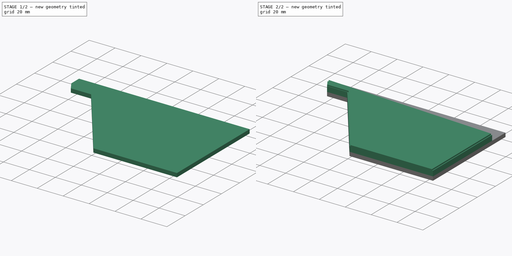
[diagram: build sequence overview — one tinted view per stage of 2, left to right]
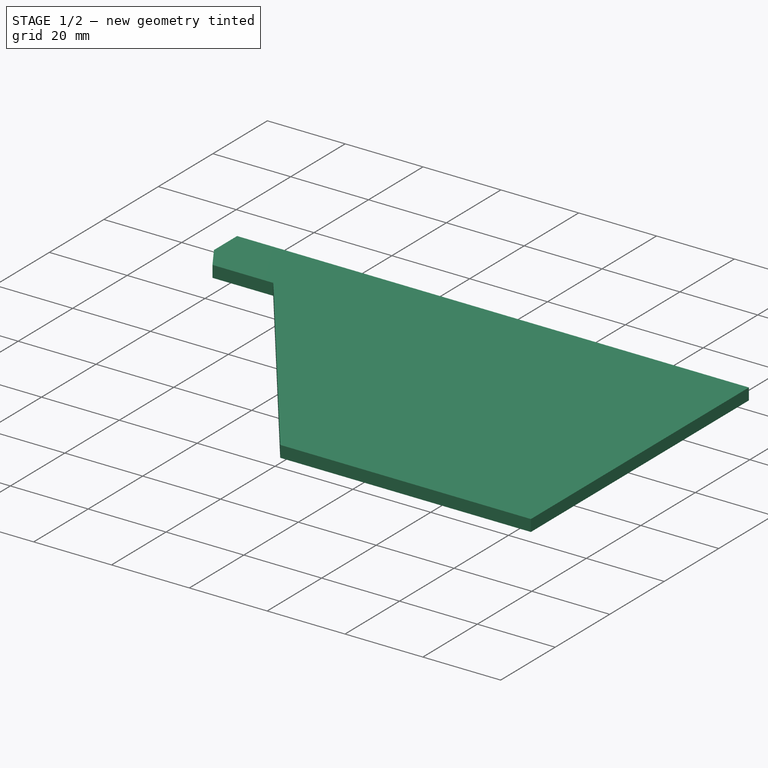
[diagram: stage 1 of 2 — iso view after this stage's code; geometry added in this stage tinted green]
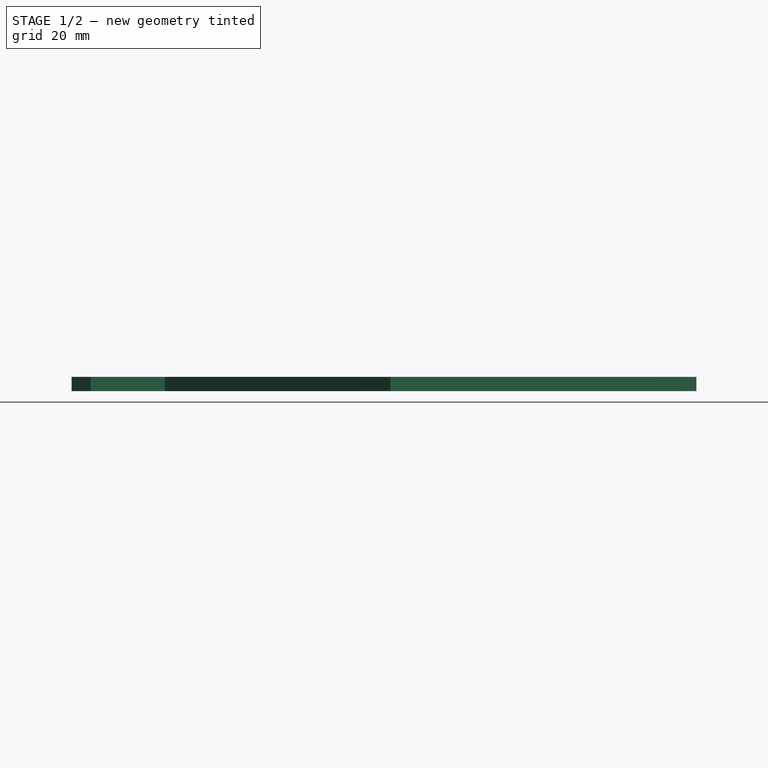
[diagram: stage 1 of 2 — front view after this stage's code; geometry added in this stage tinted green]
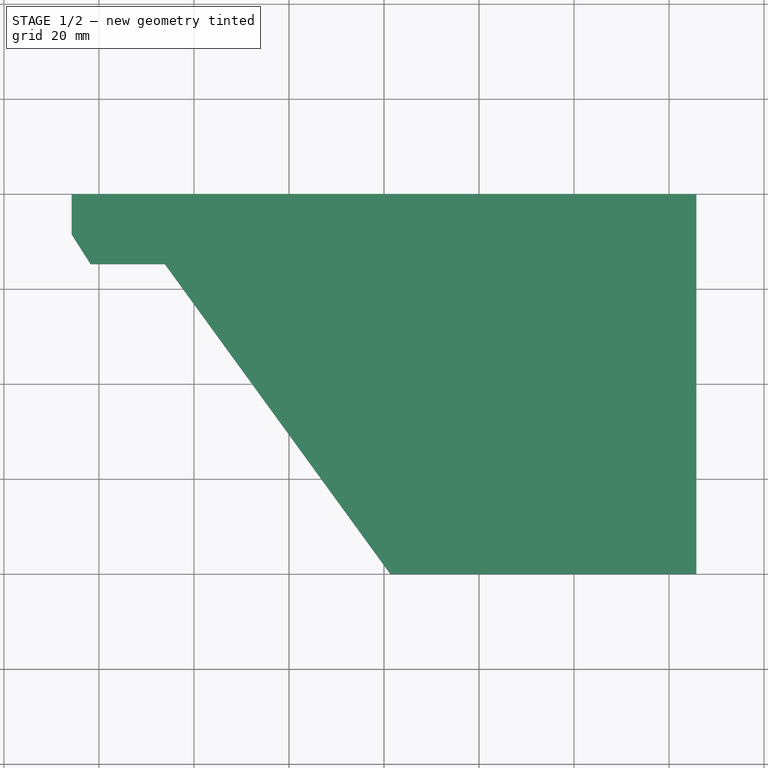
[diagram: stage 1 of 2 — top view after this stage's code; geometry added in this stage tinted green]
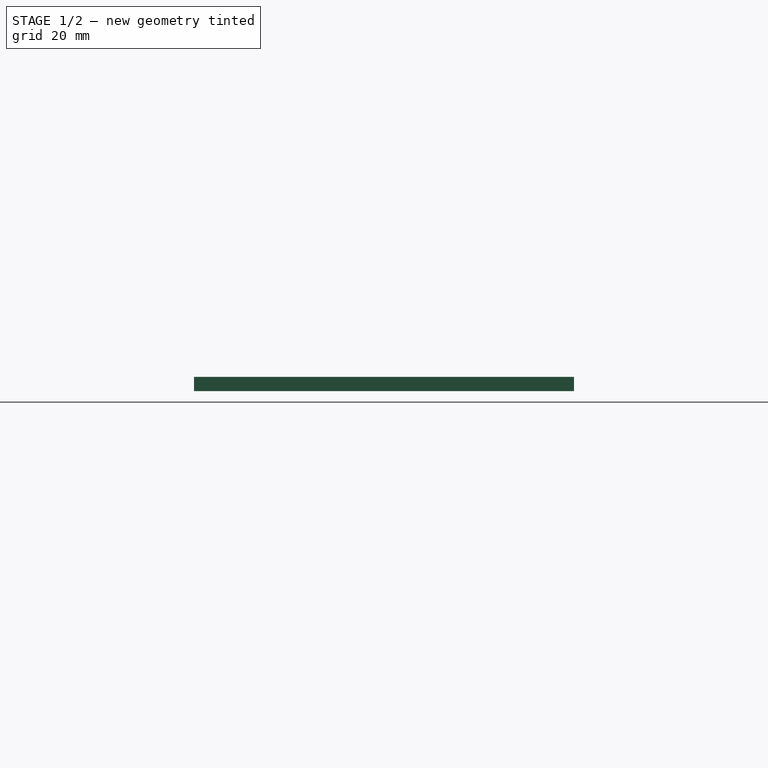
[diagram: stage 1 of 2 — right view after this stage's code; geometry added in this stage tinted green]
FCSTD DOCUMENT  (FreeCAD 0.20R29410 (Git))
Label: cover
License: All rights reserved
LicenseURL: http://en.wikipedia.org/wiki/All_rights_reserved
objects: Sketcher::SketchObject×4, PartDesign::Pad×3, PartDesign::Pocket×1, PartDesign::Body×1
note: 13 computed .brp shape members not serialized (recipe doc carries the construction recipe); baked Part::Feature solids carry a one-line shape summary decoded from their .brp

FEATURE [Sketcher::SketchObject] Sketch010
  FullyConstrained = false
  MapMode = 5
  Support = -> [XY_Plane]
  sketch-geometry (7):
    g0: LineSegment StartX=-46.1285 StartY=25.245 StartZ=0 EndX=1.34 EndY=-40 EndZ=0
    g1: LineSegment StartX=1.34 StartY=-40 StartZ=0 EndX=65.75 EndY=-40 EndZ=0
    g2: LineSegment StartX=65.75 StartY=-40 StartZ=0 EndX=65.75 EndY=40 EndZ=0
    g3: LineSegment StartX=65.75 StartY=40 StartZ=0 EndX=-65.75 EndY=40 EndZ=0
    g4: LineSegment StartX=-65.75 StartY=40 StartZ=0 EndX=-65.75 EndY=31.5023 EndZ=0
    g5: LineSegment StartX=-65.75 StartY=31.5023 StartZ=0 EndX=-61.7546 EndY=25.245 EndZ=0
    g6: LineSegment StartX=-61.7546 StartY=25.245 StartZ=0 EndX=-46.1285 EndY=25.245 EndZ=0
  constraints (15):
    c: Coincident(g0,g1)
    c: Horizontal(g1)
    c: Coincident(g1,g2)
    c: Coincident(g2,g3)
    c: Coincident(g3,g4)
    c: Vertical(g4)
    c: Coincident(g4,g5)
    c: Coincident(g5,g6)
    c: Horizontal(g6)
    c: Coincident(g6,g0)
    c: DistanceY(g2,g2) = 80
    c: DistanceX(g1,g1) = 64.41
    c: Symmetric(g3,g2,g-2)
    c: Symmetric(g2,g1,g-1)
    c: DistanceX(g3,g3) = 131.5
FEATURE [PartDesign::Pad] Pad
  Direction = (0,0,1)
  Length = 3
  Length2 = 10
  Profile = -> Sketch010
  ReferenceAxis = -> Sketch010 [N_Axis]
  Type = 0
FEATURE [Sketcher::SketchObject] Sketch
  FullyConstrained = false
  MapMode = 5
  Support = -> [XY_Plane]
  sketch-geometry (2):
    g0: Circle CenterX=-45 CenterY=36.3012 CenterZ=0 NormalX=0 NormalY=0 NormalZ=1 AngleXU=0 Radius=1.75
    g1: Circle CenterX=45 CenterY=36.3012 CenterZ=0 NormalX=0 NormalY=0 NormalZ=1 AngleXU=0 Radius=1.75
  constraints (4):
    c: Symmetric(g0,g1,g-2)
    c: Equal(g0,g1)
    c: DistanceX(g0) = -45
    c: Diameter(g0) = 3.5
FEATURE [PartDesign::Pocket] Pocket
  BaseFeature = -> Pad
  Direction = (0,0,-1)
  Length = 2
  Length2 = 5
  Profile = -> Sketch
  ReferenceAxis = -> Sketch [N_Axis]
  Reversed = true
  Type = 0
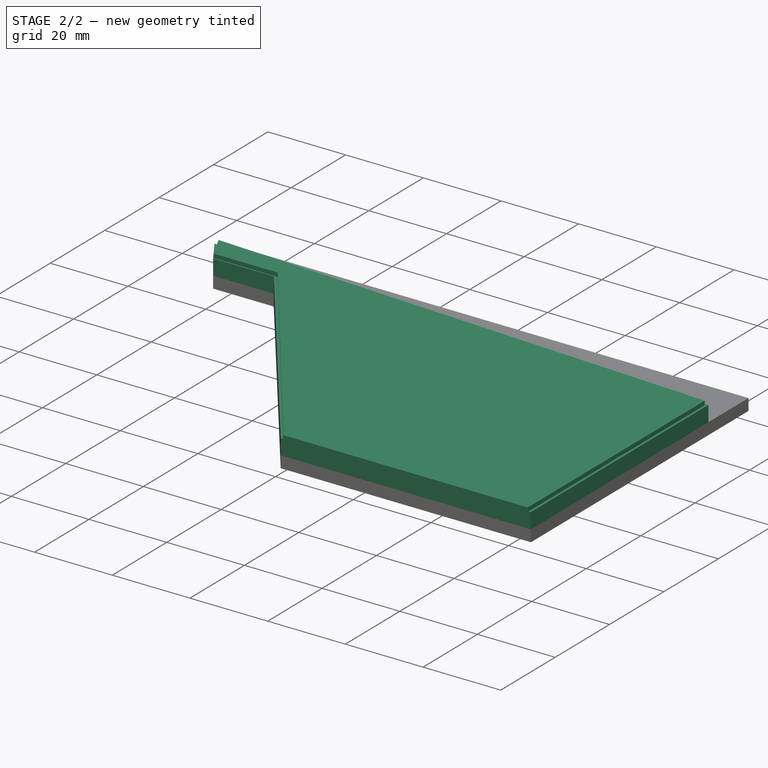
[diagram: stage 2 of 2 — iso view after this stage's code; geometry added in this stage tinted green]
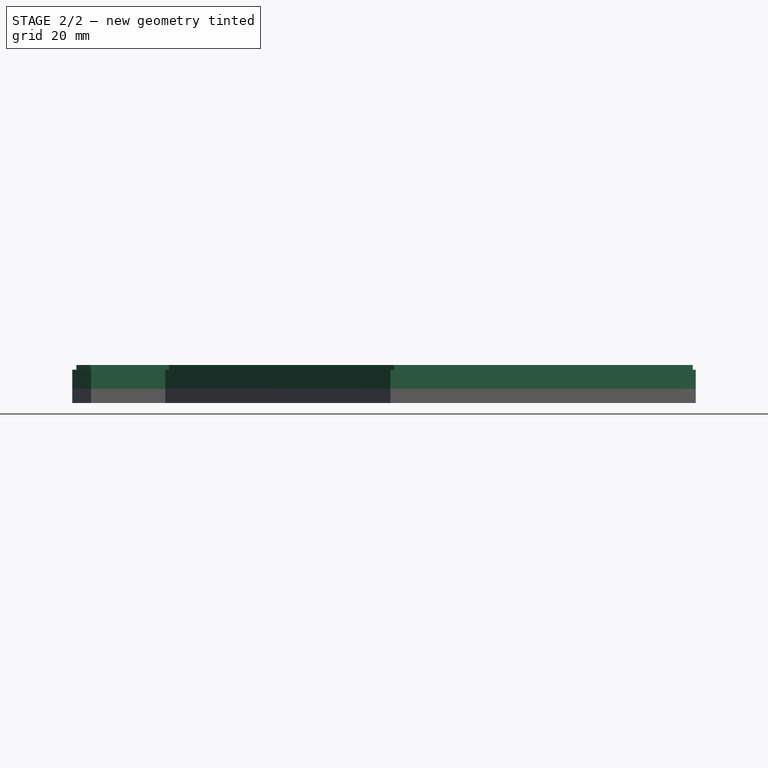
[diagram: stage 2 of 2 — front view after this stage's code; geometry added in this stage tinted green]
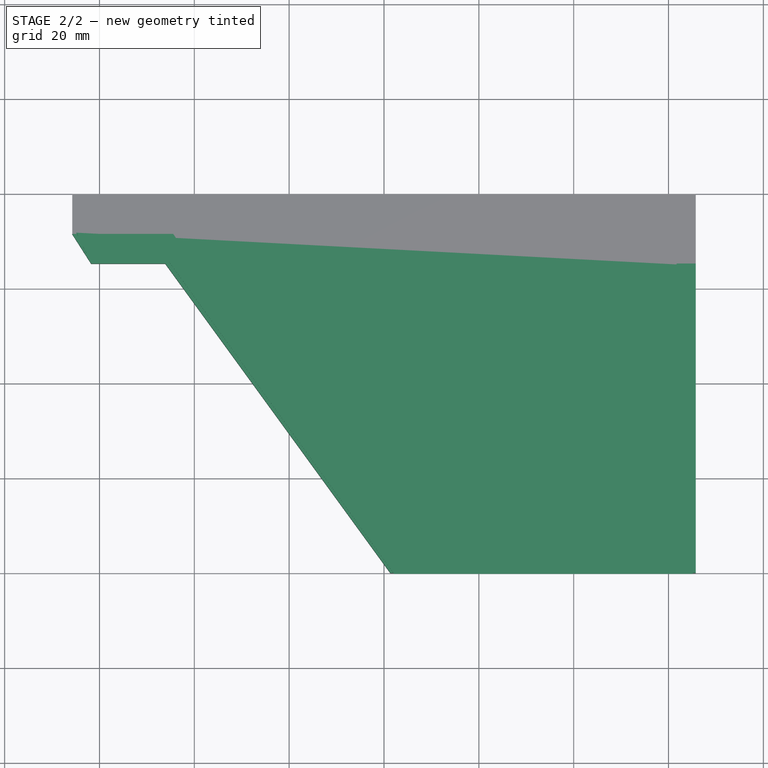
[diagram: stage 2 of 2 — top view after this stage's code; geometry added in this stage tinted green]
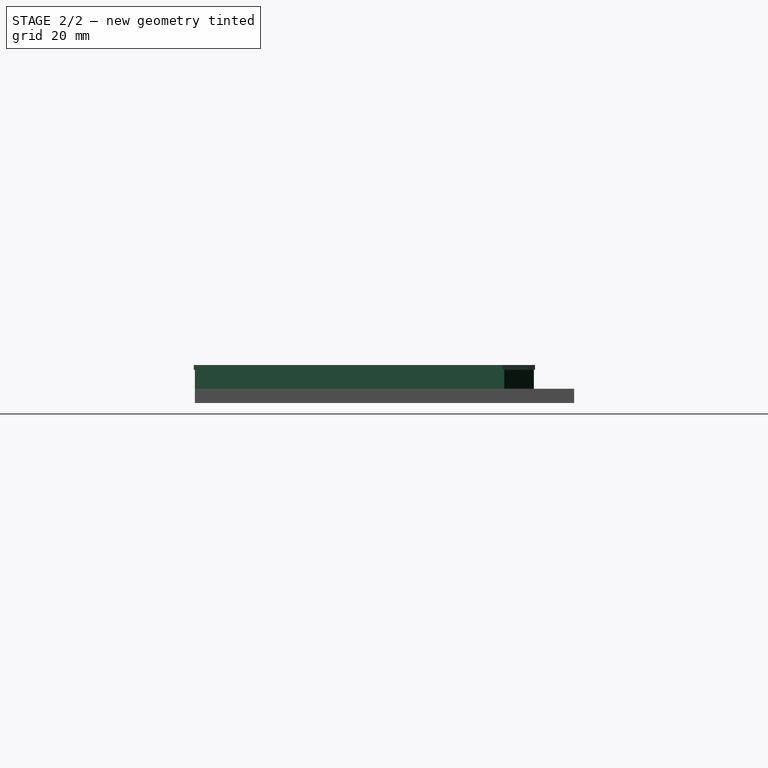
[diagram: stage 2 of 2 — right view after this stage's code; geometry added in this stage tinted green]
FEATURE [Sketcher::SketchObject] Sketch011
  ExternalGeometry = -> [Pocket]
  FullyConstrained = false
  MapMode = 5
  Placement = pos=(0,0,3) rot=(0,0,1;0rad)
  Support = -> [Pocket]
  sketch-geometry (10):
    g0: LineSegment StartX=65.75 StartY=25.245 StartZ=0 EndX=65.75 EndY=-40 EndZ=0
    g1: LineSegment StartX=1.34 StartY=-40 StartZ=0 EndX=-46.1285 EndY=25.245 EndZ=0
    g2: LineSegment StartX=-61.7546 StartY=25.245 StartZ=0 EndX=-65.75 EndY=31.5023 EndZ=0
    g3: LineSegment StartX=1.34 StartY=-40 StartZ=0 EndX=65.75 EndY=-40 EndZ=0
    g4: LineSegment StartX=-46.1285 StartY=25.245 StartZ=0 EndX=-61.7546 EndY=25.245 EndZ=0
    g5: LineSegment StartX=-65.75 StartY=31.5023 StartZ=0 EndX=-44.4583 EndY=31.5023 EndZ=0
    g6: LineSegment StartX=-44.4583 StartY=31.5023 StartZ=0 EndX=1.93563 EndY=-35.2484 EndZ=0
    g7: LineSegment StartX=1.93563 StartY=-35.2484 StartZ=0 EndX=61.7159 EndY=-35.2484 EndZ=0
    g8: LineSegment StartX=61.7159 StartY=-35.2484 StartZ=0 EndX=61.7159 EndY=25.245 EndZ=0
    g9: LineSegment StartX=61.7159 StartY=25.245 StartZ=0 EndX=65.75 EndY=25.245 EndZ=0
  constraints (21):
    c: PointOnObject(g0,g-5)
    c: Coincident(g0,g-9)
    c: Coincident(g1,g-9)
    c: Coincident(g1,g-8)
    c: Coincident(g2,g-7)
    c: Coincident(g2,g-6)
    c: Horizontal(g0,g1)
    c: Coincident(g3,g1)
    c: Coincident(g3,g0)
    c: Coincident(g4,g1)
    c: Coincident(g4,g2)
    c: Coincident(g2,g5)
    c: Horizontal(g5)
    c: Coincident(g5,g6)
    c: Coincident(g6,g7)
    c: Horizontal(g7)
    c: Coincident(g7,g8)
    c: Vertical(g8)
    c: Coincident(g8,g9)
    c: Coincident(g9,g0)
    c: Horizontal(g9)
FEATURE [PartDesign::Pad] Pad001
  BaseFeature = -> Pocket
  Direction = (0,0,1)
  Length = 4
  Length2 = 10
  Profile = -> Sketch011
  ReferenceAxis = -> Sketch011 [N_Axis]
  Type = 0
FEATURE [Sketcher::SketchObject] Sketch012
  FullyConstrained = false
  MapMode = 5
  Placement = pos=(0,0,7) rot=(0,0,1;0rad)
  Support = -> [Pad001]
  sketch-geometry (6):
    g0: LineSegment StartX=-64.8756 StartY=31.7409 StartZ=0 EndX=-61.8775 EndY=25.5685 EndZ=0
    g1: LineSegment StartX=-61.8775 StartY=25.5685 StartZ=0 EndX=-45.3002 EndY=25.5685 EndZ=0
    g2: LineSegment StartX=-45.3002 StartY=25.5685 StartZ=0 EndX=2.13906 EndY=-40.2117 EndZ=0
    g3: LineSegment StartX=2.13906 StartY=-40.2117 StartZ=0 EndX=65.0975 EndY=-40.2117 EndZ=0
    g4: LineSegment StartX=65.0975 StartY=-40.2117 StartZ=0 EndX=65.0975 EndY=24.8631 EndZ=0
    g5: LineSegment StartX=65.0975 StartY=24.8631 StartZ=0 EndX=-64.8756 EndY=31.7409 EndZ=0
  constraints (9):
    c: Coincident(g0,g1)
    c: Horizontal(g1)
    c: Coincident(g1,g2)
    c: Coincident(g2,g3)
    c: Horizontal(g3)
    c: Coincident(g3,g4)
    c: Vertical(g4)
    c: Coincident(g4,g5)
    c: Coincident(g5,g0)
FEATURE [PartDesign::Pad] Pad002
  BaseFeature = -> Pad001
  Direction = (0,0,1)
  Length = 1
  Length2 = 10
  Profile = -> Sketch012
  ReferenceAxis = -> Sketch012 [N_Axis]
  Type = 0
FEATURE [PartDesign::Body] Body
  Group = -> [Sketch010,Pad,Sketch,Pocket,Sketch011,Pad001,Sketch012,Pad002]
  Origin = -> Origin
  Tip = -> Pad002
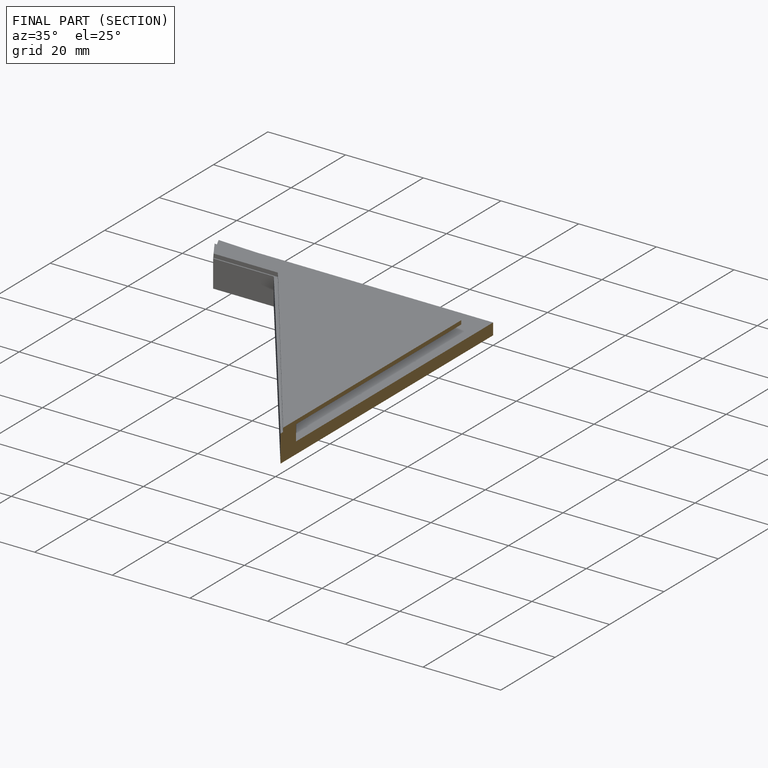
[diagram: finished part — half-section view (interior)]
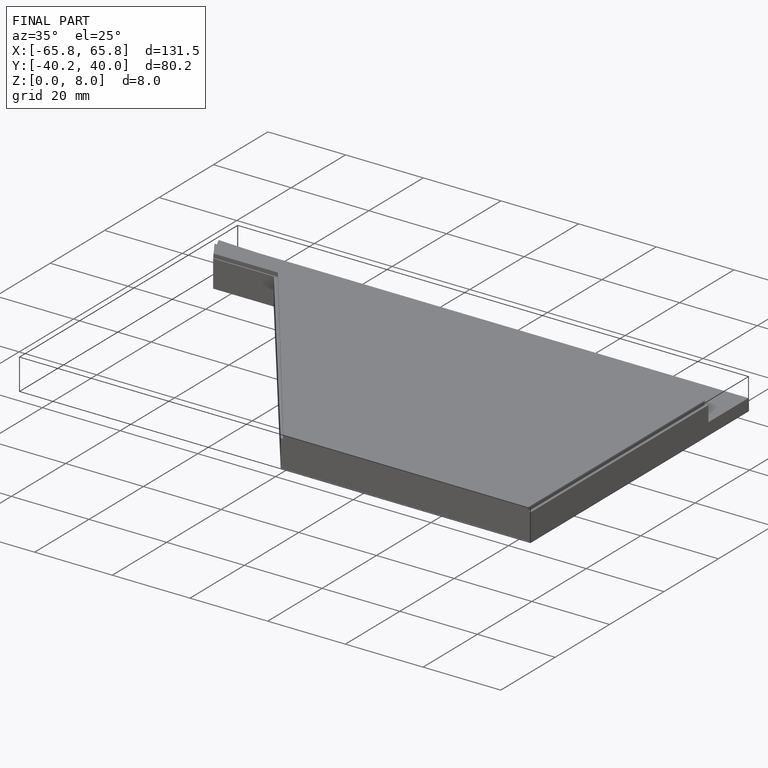
[diagram: finished part — iso view with bounding-box wireframe]
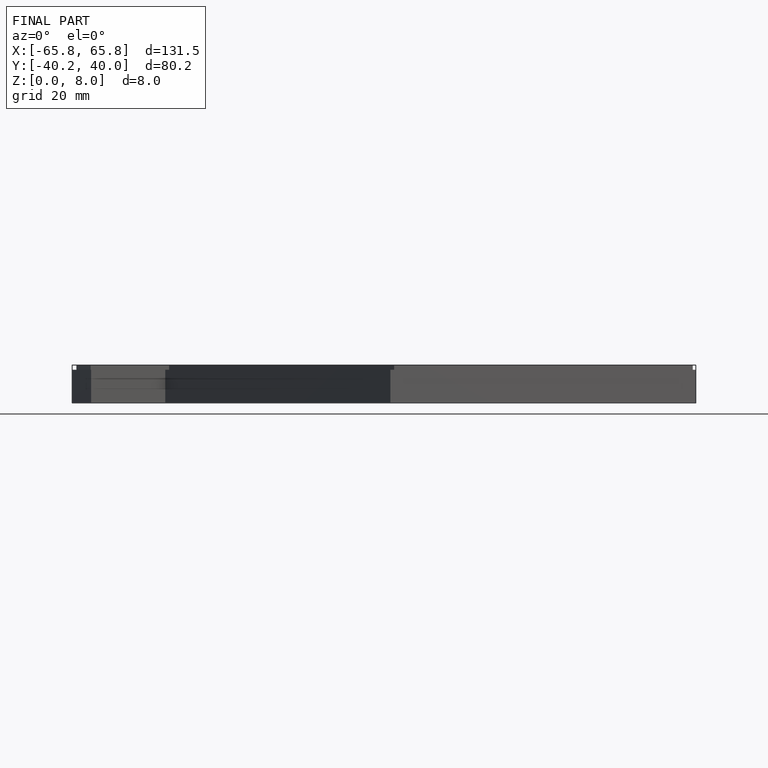
[diagram: finished part — front view with bounding-box wireframe]
